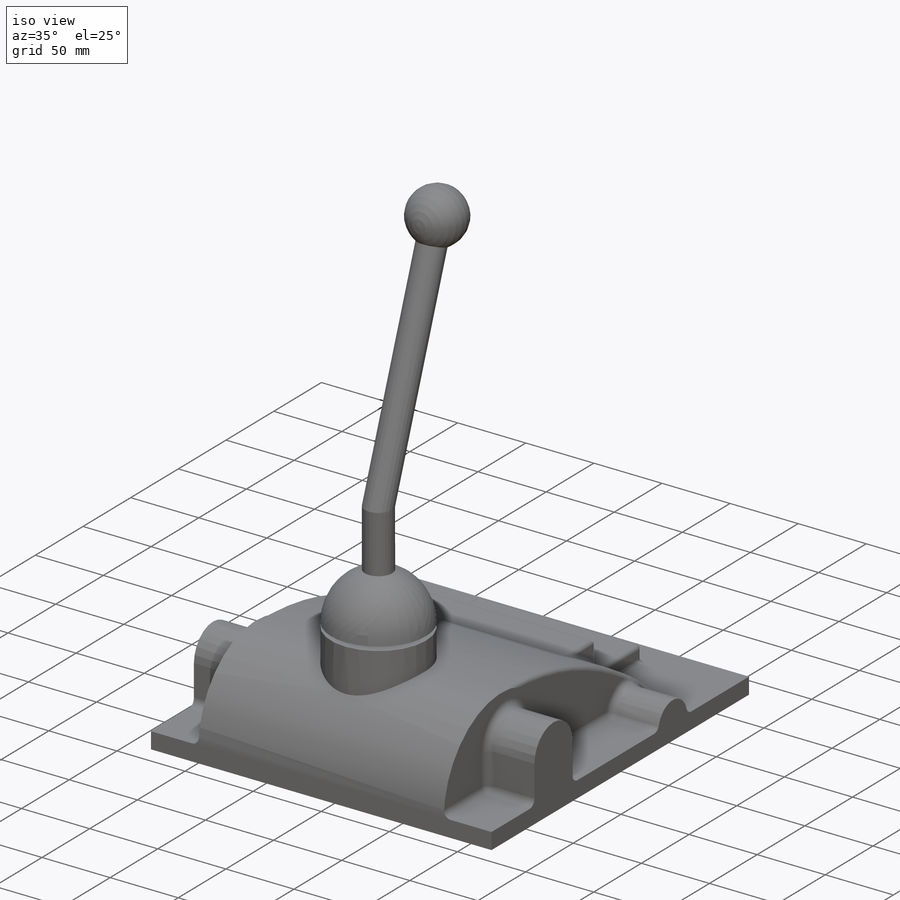
[diagram: iso view]
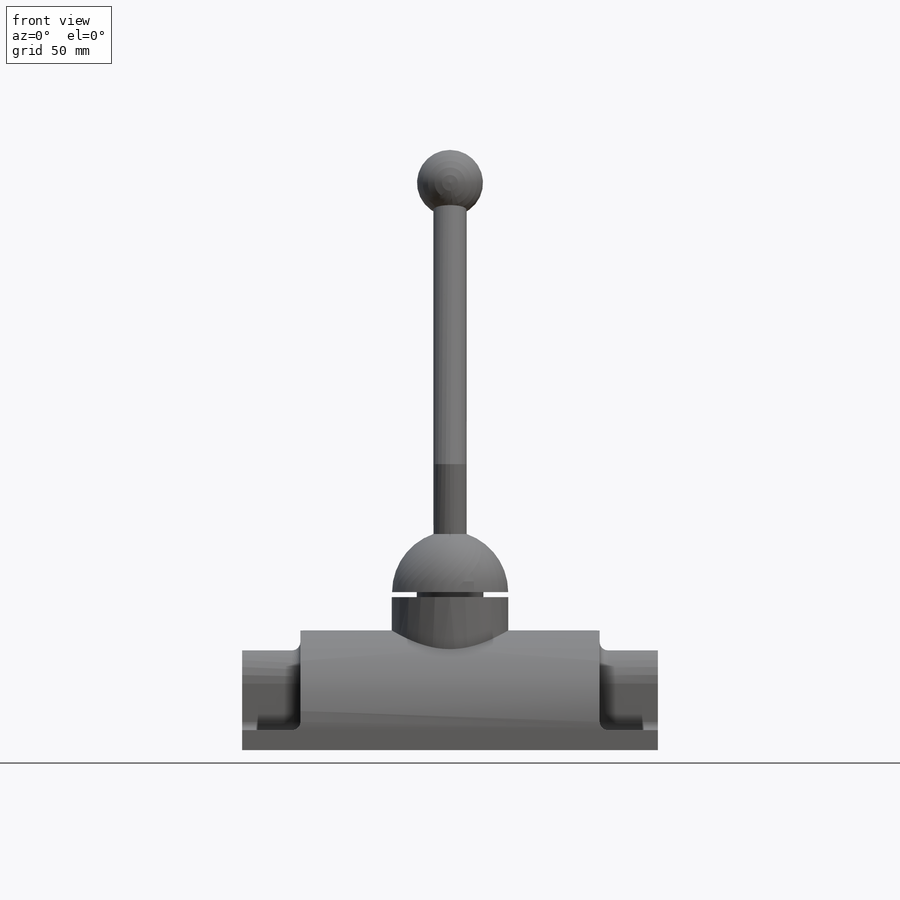
[diagram: front view]
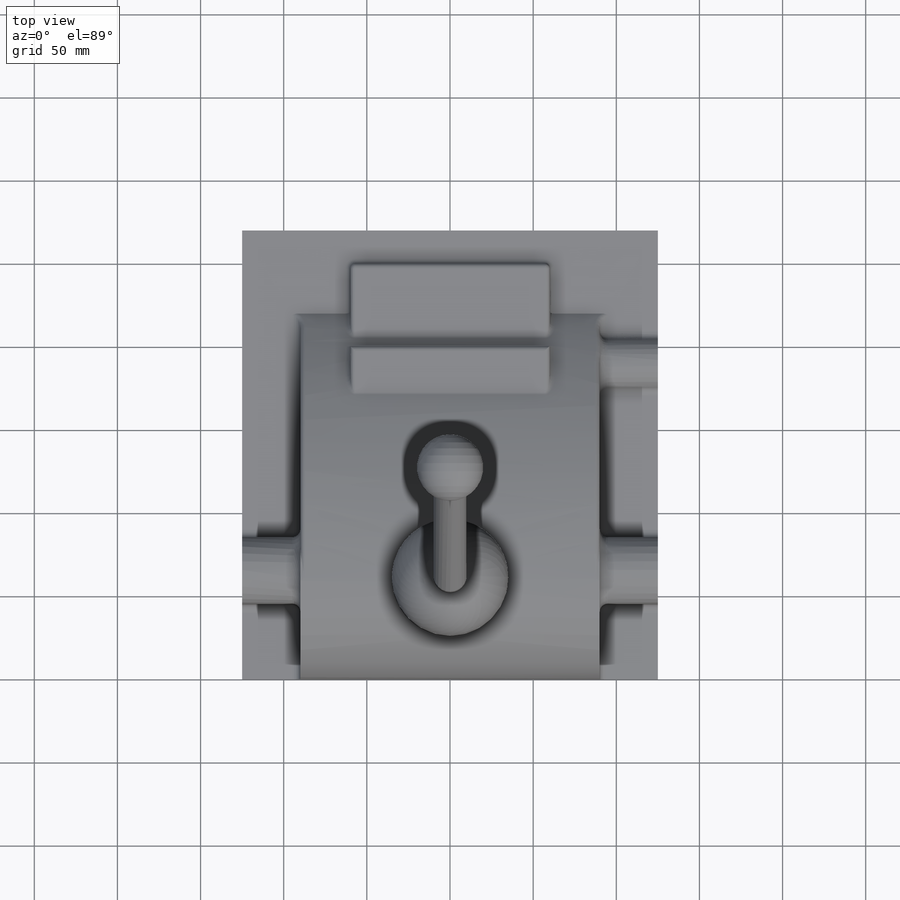
[diagram: top view]
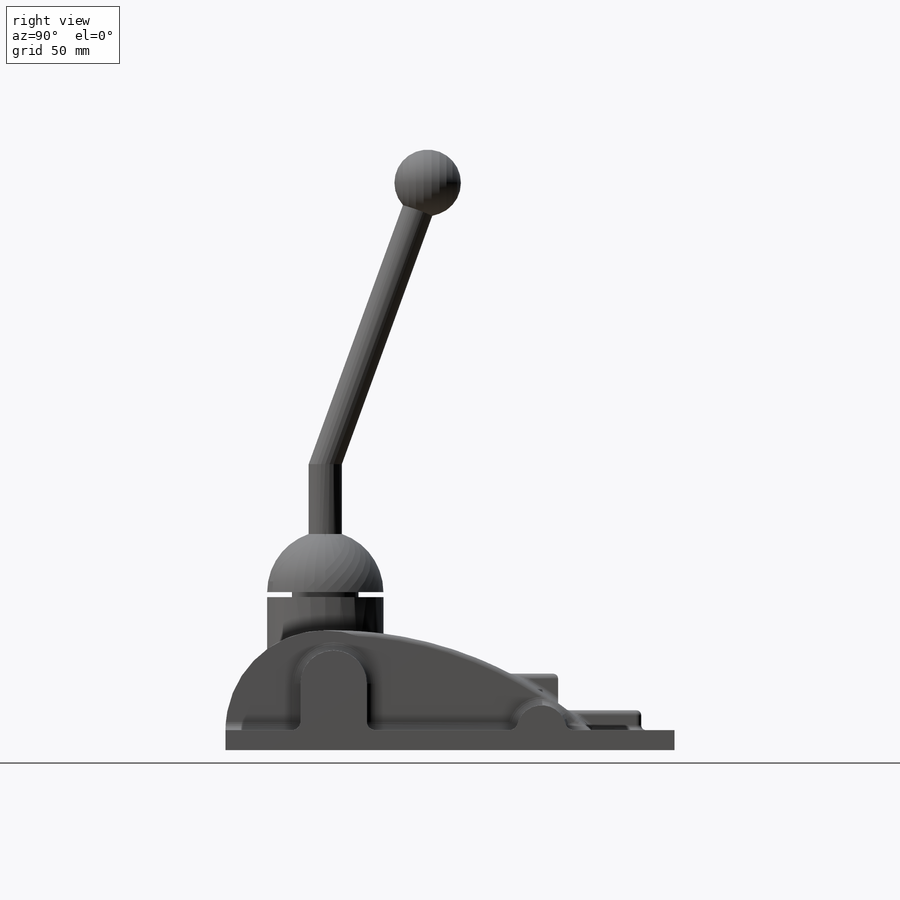
[diagram: right view]
SOLIDWORKS PART (.sldprt)
format: sldprt  version: not decoded by parser v0  size: 500,736 bytes
history: native  units: mm
features: sketch x10, extrude x8, plane x4, revolve x2, fillet x2, material x1 (+10 scaffold rows collapsed)
feature tree (37):
  scaffold x10  (default folders/planes/origin — collapsed)
  material  "Material <not specified>"
  plane  "Plan de face"
  plane  "Plan de dessus"
  plane  "Plan de droite"
  sketch  "Sketch1"  dims[c1.D3=60.0mm c1.D1=220.0mm c1.D2=60.0mm c2.D3=170.0mm]
  extrude  "Boss-Extrude5"  Depth=180mm
  sketch  "Sketch5"  dims[D1=250.0mm D2=270.0mm]
  extrude  "Boss-Extrude4"  Depth=12mm
  sketch  "Sketch2"  dims[D5=230.0mm D1=30.0mm D2=12.0mm D3=34.0mm D4=50.0mm D6=~48.69316mm]
  extrude  "Boss-Extrude1"  Depth=120mm
  sketch  "Sketch3"  dims[D1=30.0mm D2=45.0mm]
  extrude  "Boss-Extrude2"  [1 undecoded]
  plane  "Plane4"
  sketch  "Sketch4"  dims[D1=28.0mm D2=40.0mm D3=65.0mm]
  extrude  "Boss-Extrude3"  [1 undecoded]
  sketch  "Sketch8"  dims[D1=20.0mm]
  extrude  "Boss-Extrude6"  Depth=160mm
  sketch  "Sketch6"  dims[c1.D6=37.0mm c1.D1=10.0mm c1.D2=10.0mm c1.D3=38.0mm c1.D4=15.0mm c1.D5=3.0mm c2.D6=80.0mm]
  revolve  "Revolve1"  Angle=360deg
  sketch  "Sketch9"  dims[D1=70.0mm]
  extrude  "Boss-Extrude7"  [1 undecoded]
  sketch  "3DSketch2"  dims[c1.D1=~86.774722mm c2.D1=20.0deg c2.D2=80.0mm]
  extrude  "Boss-Extrude8"  Depth=180mm
  sketch  "Sketch11"  dims[D1=40.0mm]
  revolve  "Revolve2"  Angle=360deg
  fillet  "Fillet13"  Radius=5mm
  fillet  "Fillet17"  Radius=3mm
decode coverage: 19 of 22 modeling features carry decoded parameters
note: ~ marks probable driven/reference dimensions
note: 3 parameter values undecoded
summary: no parameter record found for 3 features
note: suppression state not decoded; provenance and decode notes live in map.json
